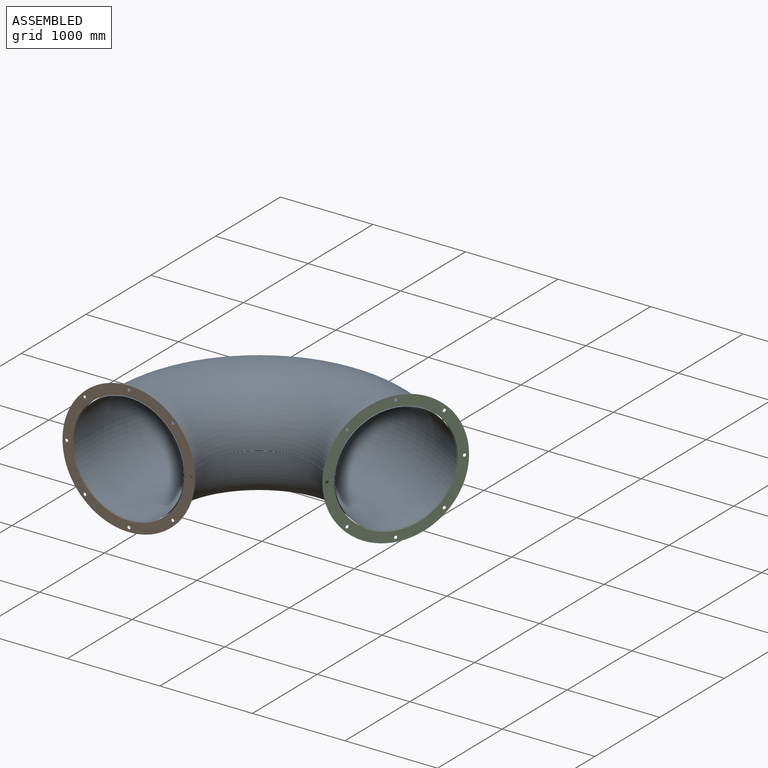
[diagram: assembled view]
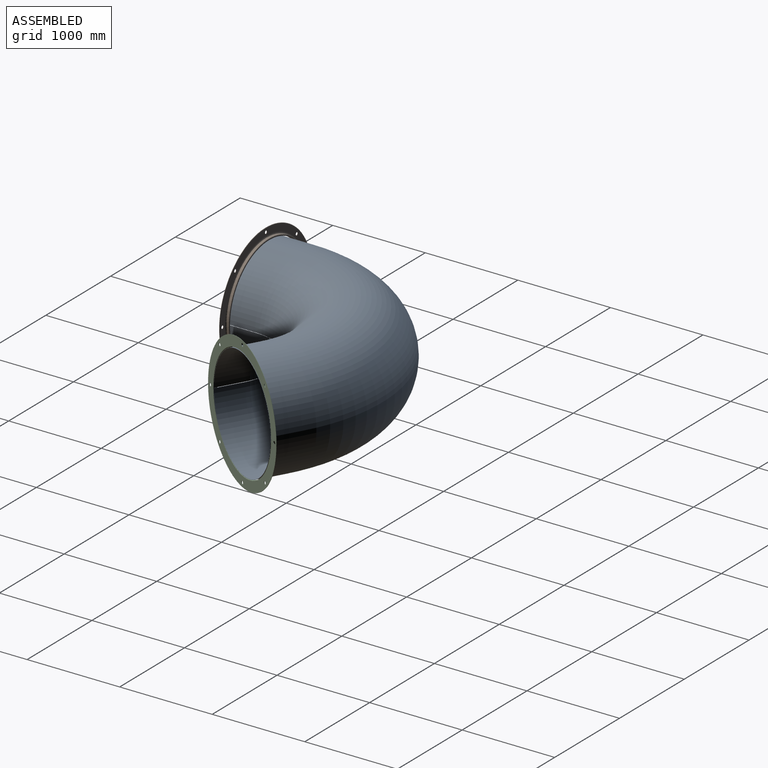
[diagram: assembled view, second angle]
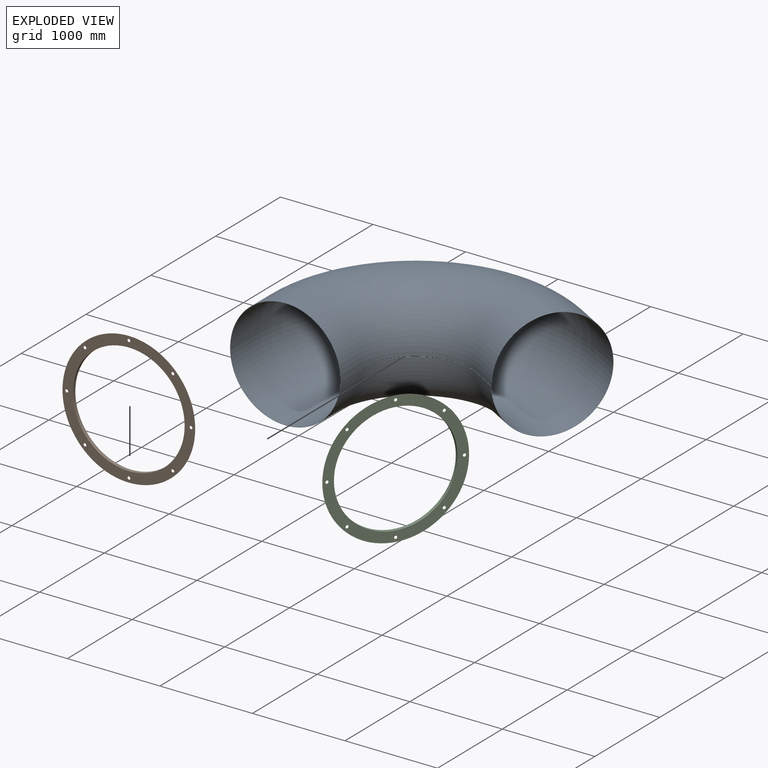
[diagram: exploded view]
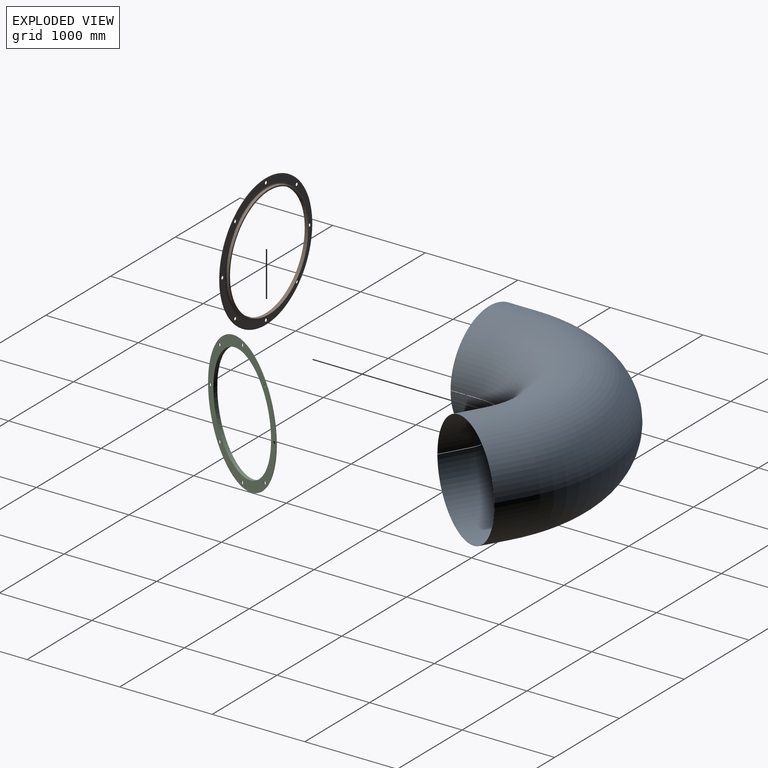
[diagram: exploded view, second angle]
ASSEMBLY  parts=3 mates=2
PART A: 14 faces, bbox 3097.6x2243x1193.8 mm
  f0: plane 1193.8x1193.8mm, normal (0,1,0), area 9931.6mm2, adj f2,f3,f4,f5
  f1: plane 1193.8x1033.86mm, normal (0.87,0.5,0), area 9931.6mm2, adj f10,f11,f12,f13
  f2: plane 304.8x2.66mm, normal (0,0,-1), area 809.8mm2, adj f0,f3,f5,f6
  f3: cylinder r=596.9mm len=1193.8mm, axis (0,-1,0), area 1141921.3mm2, adj f0,f2,f4,f7
  f4: plane 304.8x2.66mm, normal (0,0,1), area 809.8mm2, adj f0,f3,f5,f8
  f5: cylinder r=594.24mm len=1188.49mm, axis (0,-1,0), area 1136838.5mm2, adj f0,f2,f4,f9
  f6: cone r=604.74mm half-angle=89.8deg, axis (0,0,-1), area 3328.8mm2, adj f2,f7,f9,f10
  f7: torus R=1193.8mm, axis (0,0,1), area 9372183.6mm2, adj f3,f6,f8,f11
  f8: cone r=596.9mm half-angle=89.8deg, axis (0,0,1), area 3328.8mm2, adj f4,f7,f9,f12
  f9: torus R=1193.8mm, axis (0,0,1), area 9330445.4mm2, adj f5,f6,f8,f13
  f10: plane 265.29x154.7mm, normal (0,0,-1), area 809.8mm2, adj f1,f6,f11,f13
  f11: cylinder r=596.9mm len=1193.8mm, axis (0.87,0.5,0), area 1141921.3mm2, adj f1,f7,f10,f12
  f12: plane 265.29x154.7mm, normal (0,0,1), area 809.8mm2, adj f1,f8,f11,f13
  f13: cylinder r=594.24mm len=1188.49mm, axis (0.87,0.5,0), area 1136838.5mm2, adj f1,f9,f10,f12
PART B: 17 faces, bbox 1431.6x38.1x1431.6 mm
  f0: bspline ~1260.75x1241.67mm, area 61329.5mm2, adj f1,f2
  f1: cylinder r=617.88mm len=1235.77mm, axis (0,-1,0), area 101691.5mm2, adj f0,f3
  f2: plane 1417.64x1417.64mm, normal (0,1,0), area 317386.3mm2, adj f0,f5,f7,f8,f9,f10,f11,f12
  f3: bspline ~1232.83x1214.18mm, area 30194.1mm2, adj f1,f4
  f4: plane 1221.78x1221.78mm, normal (0,1,0), area 26695.1mm2, adj f3,f16
  f5: bspline ~1428.23x1406.62mm, area 35004.4mm2, adj f2,f6
  f6: cylinder r=715.81mm len=1431.63mm, axis (0,-1,0), area 10709.9mm2, adj f5,f15
  f7: cylinder r=16.32mm len=32.64mm, axis (0,-1,0), area 488.4mm2, adj f2,f15
  f8: cylinder r=16.32mm len=32.64mm, axis (0,-1,0), area 488.4mm2, adj f2,f15
  f9: cylinder r=16.32mm len=32.64mm, axis (0,-1,0), area 488.4mm2, adj f2,f15
  f10: cylinder r=16.32mm len=32.64mm, axis (0,-1,0), area 488.4mm2, adj f2,f15
  f11: cylinder r=16.32mm len=32.64mm, axis (0,-1,0), area 488.4mm2, adj f2,f15
  f12: cylinder r=16.32mm len=32.64mm, axis (0,-1,0), area 488.4mm2, adj f2,f15
  f13: cylinder r=16.32mm len=32.64mm, axis (0,-1,0), area 488.4mm2, adj f2,f15
  f14: cylinder r=16.32mm len=32.64mm, axis (0,-1,0), area 488.4mm2, adj f2,f15
  f15: plane 1431.63x1431.63mm, normal (0,-1,0), area 457317.8mm2, adj f6,f7,f8,f9,f10,f11,f12,f13
  f16: cylinder r=603.89mm len=1207.79mm, axis (0,-1,0), area 144565.9mm2, adj f4,f15
PART C: same geometry as B
PLACE A rot(axis=(-1,0,0),180deg) t=(0,0,0)mm
PLACE B t=(0,-624.06,0)mm
PLACE C rot(axis=(0,0,1),60deg) t=(2054.66,562.2,0)mm
MATE fastened C.f1 <-> A.f11  axis (0.87,-0.5,0) through (2054.66,562.2,0)mm
MATE fastened A.f3 <-> B.f6  axis (0,-1,0) through (0,-624.06,0)mm
